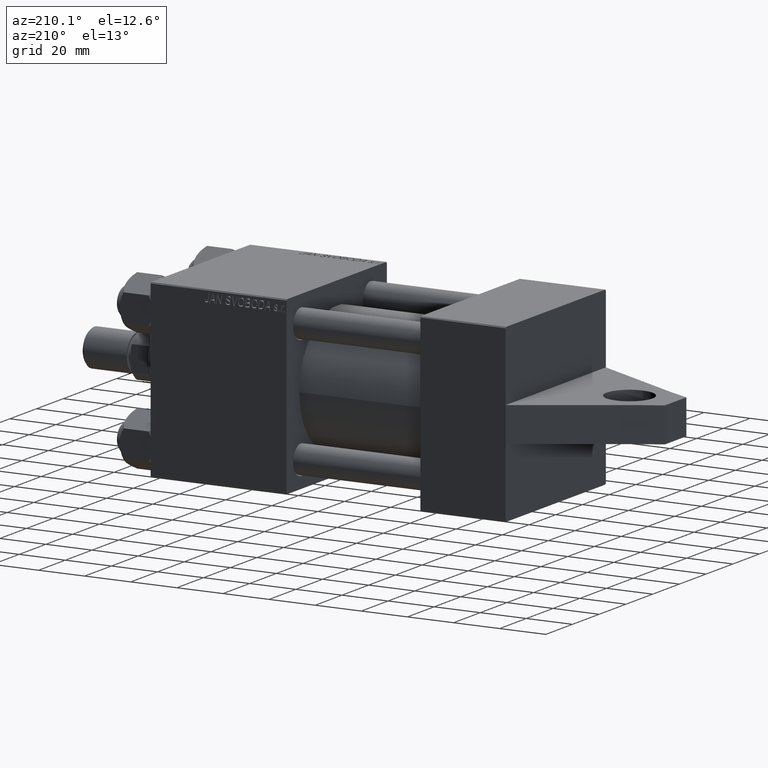
[diagram: clean part render]
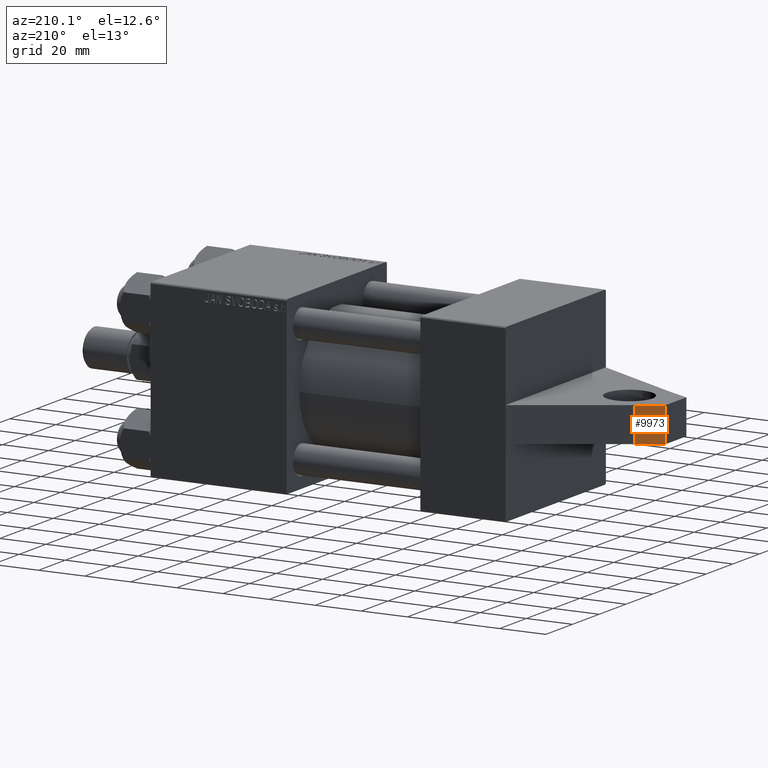
[diagram: same view with one face highlighted and labeled with its STEP entity id]
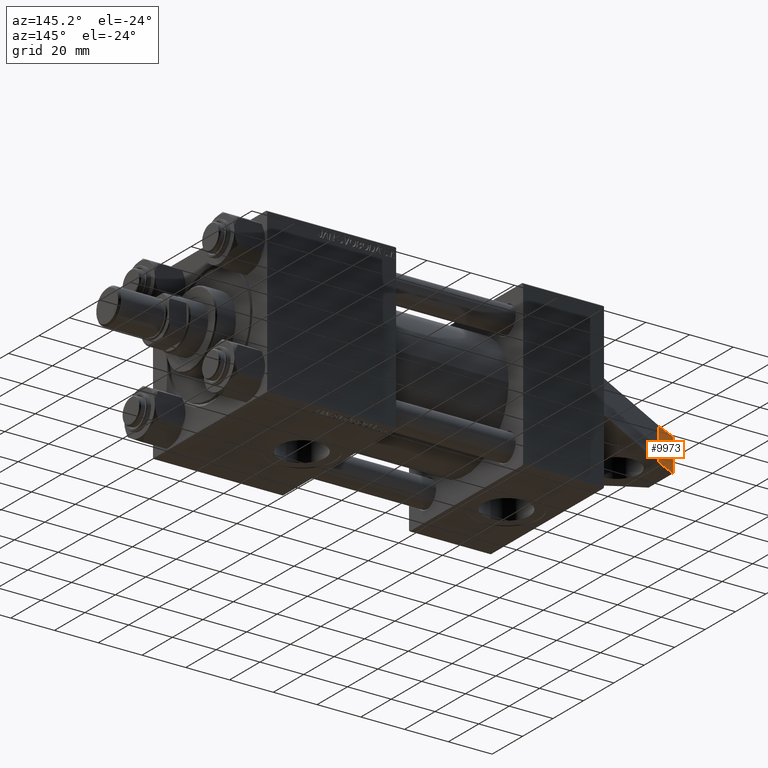
[diagram: same view with one face highlighted and labeled with its STEP entity id]
A machine part, auxiliary view. The second image highlights one B-rep face of the part: STEP entity #9973.
A second angle (auxiliary view) of the same face is appended — the face is thin or edge-on in the first view.
In plain terms, the highlighted planar face has unit normal (-0.4649, 0.8854, -0).
Its self-contained STEP definition (entity closure, byte-faithful):
#948 = LINE ( 'NONE', #8714, #10962 ) ;
#1799 = ORIENTED_EDGE ( 'NONE', *, *, #31353, .F. ) ;
#3471 = CARTESIAN_POINT ( 'NONE',  ( -52.00000000000000711, 7.500000000000000000, -8.000000000000000000 ) ) ;
#4171 = DIRECTION ( 'NONE',  ( -0.4649233387721528610, 0.000000000000000000, -0.8853509411893987213 ) ) ;
#4582 = EDGE_CURVE ( 'NONE', #18905, #15209, #16513, .T. ) ;
#7346 = EDGE_CURVE ( 'NONE', #18905, #44071, #948, .T. ) ;
#8714 = CARTESIAN_POINT ( 'NONE',  ( -52.00000000000000711, -7.500000000000000000, -8.000000000000000000 ) ) ;
#9973 = ADVANCED_FACE ( 'NONE', ( #29790 ), #44126, .T. ) ;
#10962 = VECTOR ( 'NONE', #40907, 1000.000000000000227 ) ;
#11921 = CARTESIAN_POINT ( 'NONE',  ( -52.00000000000000711, -7.500000000000000000, -8.000000000000000000 ) ) ;
#12931 = CARTESIAN_POINT ( 'NONE',  ( -52.00000000000000711, 7.500000000000000000, -8.000000000000000000 ) ) ;
#13132 = CARTESIAN_POINT ( 'NONE',  ( -42.00000000000000000, 7.500000000000000000, -13.25128869403544485 ) ) ;
#15209 = VERTEX_POINT ( 'NONE', #13132 ) ;
#15899 = DIRECTION ( 'NONE',  ( -0.8853509411893986103, 0.000000000000000000, 0.4649233387721528055 ) ) ;
#16513 = LINE ( 'NONE', #38134, #39532 ) ;
#17640 = EDGE_LOOP ( 'NONE', ( #1799, #23246, #42220, #32503 ) ) ;
#17985 = DIRECTION ( 'NONE',  ( 0.000000000000000000, 1.000000000000000000, 0.000000000000000000 ) ) ;
#18905 = VERTEX_POINT ( 'NONE', #44170 ) ;
#19290 = DIRECTION ( 'NONE',  ( -0.8853509411893986103, -0.000000000000000000, 0.4649233387721528055 ) ) ;
#23246 = ORIENTED_EDGE ( 'NONE', *, *, #4582, .F. ) ;
#27101 = VECTOR ( 'NONE', #17985, 1000.000000000000000 ) ;
#27334 = DIRECTION ( 'NONE',  ( 0.000000000000000000, 1.000000000000000000, 0.000000000000000000 ) ) ;
#28569 = LINE ( 'NONE', #42905, #27101 ) ;
#29049 = EDGE_CURVE ( 'NONE', #44071, #40990, #28569, .T. ) ;
#29732 = CARTESIAN_POINT ( 'NONE',  ( -52.00000000000000711, -7.500000000000000000, -8.000000000000000000 ) ) ;
#29790 = FACE_OUTER_BOUND ( 'NONE', #17640, .T. ) ;
#30140 = VECTOR ( 'NONE', #19290, 1000.000000000000227 ) ;
#31353 = EDGE_CURVE ( 'NONE', #15209, #40990, #45148, .T. ) ;
#32503 = ORIENTED_EDGE ( 'NONE', *, *, #29049, .T. ) ;
#35055 = AXIS2_PLACEMENT_3D ( 'NONE', #11921, #4171, #15899 ) ;
#38134 = CARTESIAN_POINT ( 'NONE',  ( -42.00000000000000000, -7.500000000000000000, -13.25128869403544485 ) ) ;
#39532 = VECTOR ( 'NONE', #27334, 1000.000000000000000 ) ;
#40907 = DIRECTION ( 'NONE',  ( -0.8853509411893986103, -0.000000000000000000, 0.4649233387721528055 ) ) ;
#40990 = VERTEX_POINT ( 'NONE', #3471 ) ;
#42220 = ORIENTED_EDGE ( 'NONE', *, *, #7346, .T. ) ;
#42905 = CARTESIAN_POINT ( 'NONE',  ( -52.00000000000000711, -7.500000000000000000, -8.000000000000000000 ) ) ;
#44071 = VERTEX_POINT ( 'NONE', #29732 ) ;
#44126 = PLANE ( 'NONE',  #35055 ) ;
#44170 = CARTESIAN_POINT ( 'NONE',  ( -42.00000000000000000, -7.500000000000000000, -13.25128869403544485 ) ) ;
#45148 = LINE ( 'NONE', #12931, #30140 ) ;